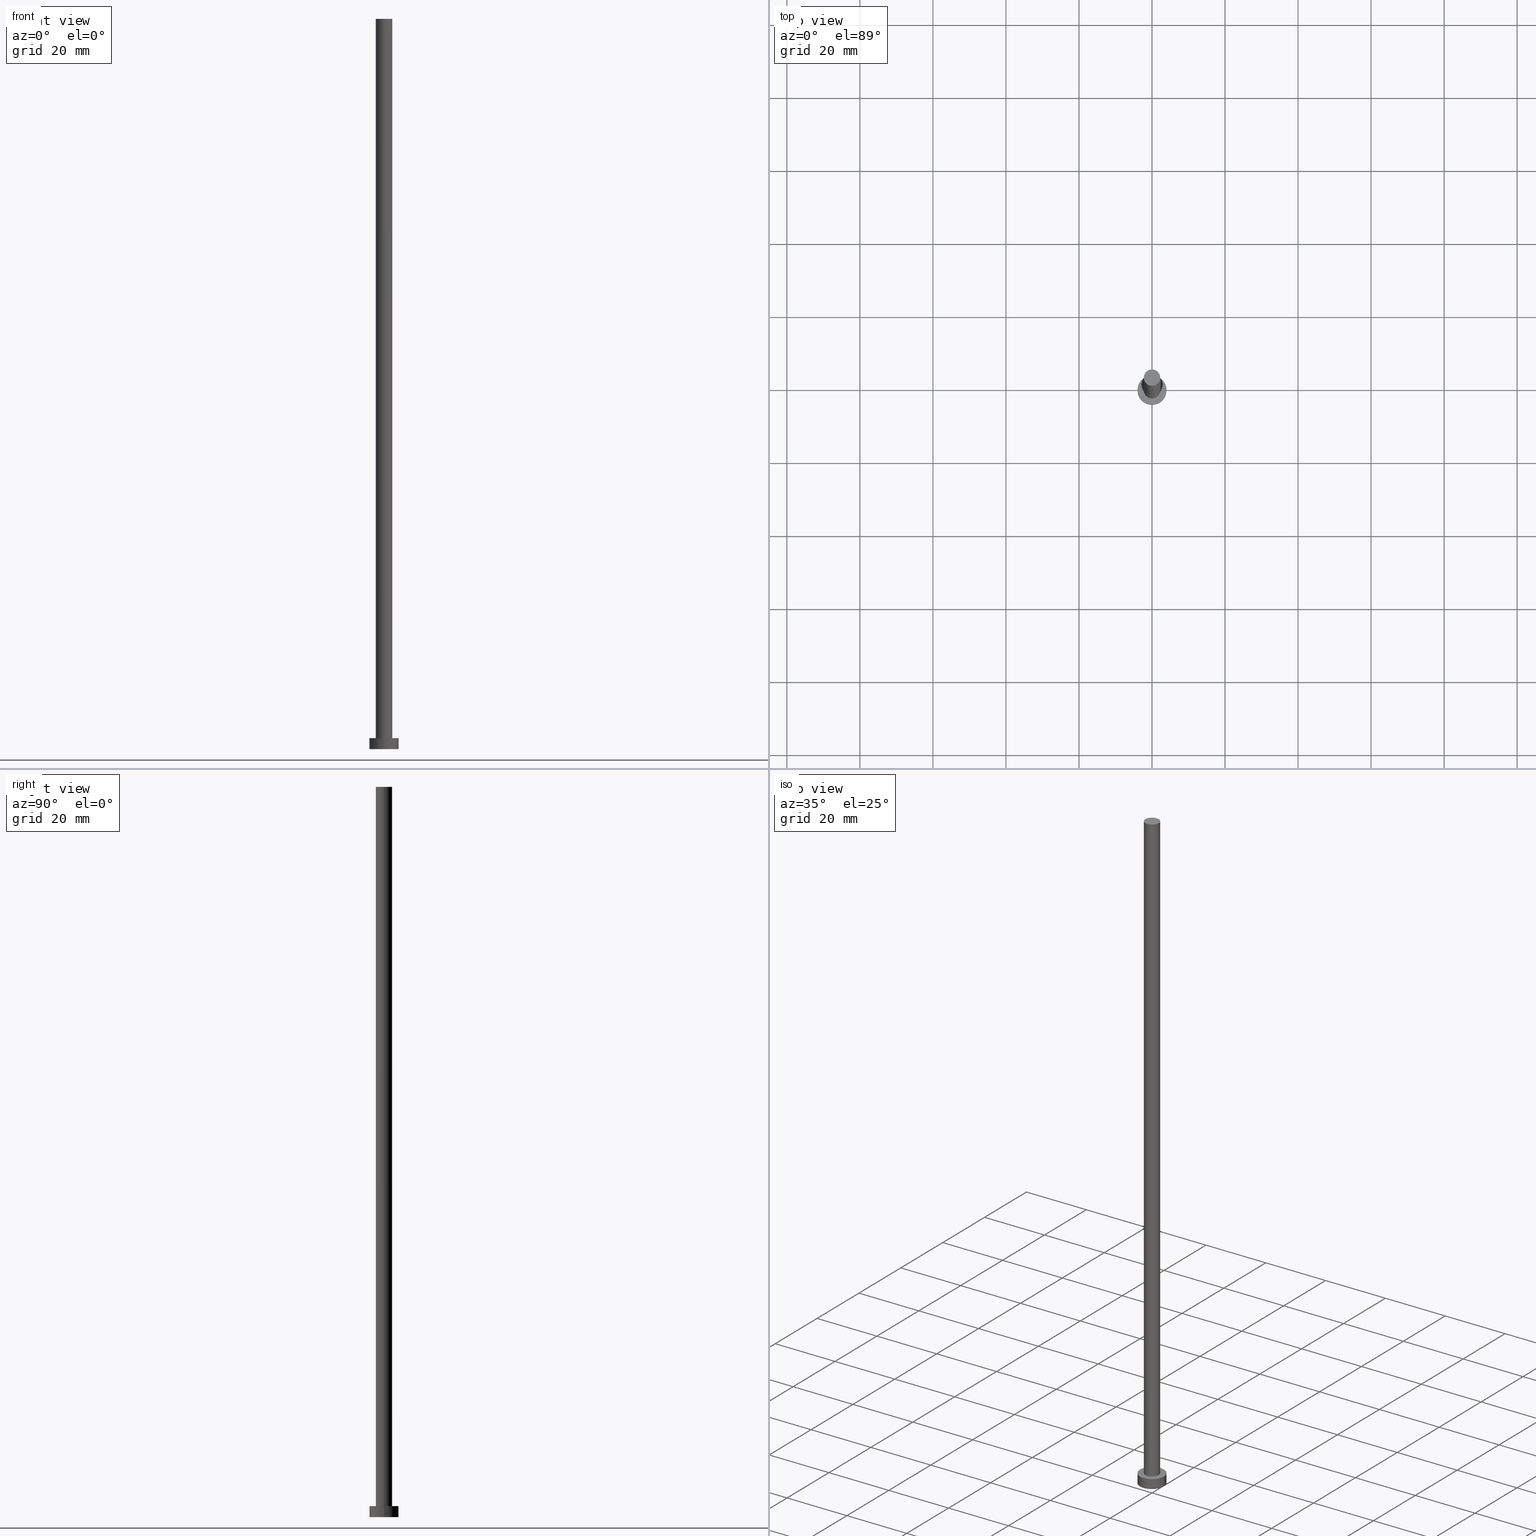
[diagram: canonical four-view strip — front | top / right | iso, engineering-drawing reading convention]
A machine part, canonical four-view strip (front | top / right | iso — engineering-drawing reading convention). The complete STEP part file that produces these views, byte-faithful:
ISO-10303-21;
HEADER;
FILE_DESCRIPTION (( 'STEP AP203' ),
    '1' );
FILE_NAME ('211e.STEP',
    '2023-02-13T13:28:23',
    ( '' ),
    ( '' ),
    'SwSTEP 2.0',
    'SolidWorks 2019',
    '' );
FILE_SCHEMA (( 'CONFIG_CONTROL_DESIGN' ));
ENDSEC;

DATA;
#1 = CC_DESIGN_APPROVAL ( #114, ( #201 ) ) ;
#2 = APPROVAL ( #85, 'NEUR�EN�' ) ;
#3 = APPROVAL_DATE_TIME ( #45, #114 ) ;
#4 = CIRCLE ( 'NONE', #162, 2.250000000000000000 ) ;
#5 = DATE_AND_TIME ( #209, #40 ) ;
#6 = CALENDAR_DATE ( 2023, 13, 2 ) ;
#7 = DATE_TIME_ROLE ( 'classification_date' ) ;
#8 = COORDINATED_UNIVERSAL_TIME_OFFSET ( 1, 0, .AHEAD. ) ;
#9 = VERTEX_POINT ( 'NONE', #127 ) ;
#10 = EDGE_LOOP ( 'NONE', ( #70, #88 ) ) ;
#11 = DATE_AND_TIME ( #188, #221 ) ;
#12 = LINE ( 'NONE', #119, #239 ) ;
#13 = CC_DESIGN_PERSON_AND_ORGANIZATION_ASSIGNMENT ( #185, #242, ( #81 ) ) ;
#14 = EDGE_LOOP ( 'NONE', ( #168, #206, #232, #84 ) ) ;
#15 = DIRECTION ( 'NONE',  ( 1.000000000000000000, 0.000000000000000000, 0.000000000000000000 ) ) ;
#16 = CARTESIAN_POINT ( 'NONE',  ( -4.000000000000000000, 0.000000000000000000, 3.000000000000000000 ) ) ;
#17 = CYLINDRICAL_SURFACE ( 'NONE', #132, 4.000000000000000000 ) ;
#18 = FACE_OUTER_BOUND ( 'NONE', #14, .T. ) ;
#19 = FACE_OUTER_BOUND ( 'NONE', #187, .T. ) ;
#20 = PRODUCT_RELATED_PRODUCT_CATEGORY ( 'detail', '', ( #81 ) ) ;
#21 = CARTESIAN_POINT ( 'NONE',  ( -2.250000000000000000, 0.000000000000000000, 200.0000000000000000 ) ) ;
#22 = DIRECTION ( 'NONE',  ( 0.000000000000000000, 0.000000000000000000, 1.000000000000000000 ) ) ;
#23 = CC_DESIGN_APPROVAL ( #2, ( #222 ) ) ;
#24 = DIRECTION ( 'NONE',  ( -1.000000000000000000, 0.000000000000000000, 0.000000000000000000 ) ) ;
#25 = APPLICATION_PROTOCOL_DEFINITION ( 'international standard', 'config_control_design', 1994, #124 ) ;
#26 = PERSON_AND_ORGANIZATION ( #240, #202 ) ;
#27 = DIRECTION ( 'NONE',  ( -0.000000000000000000, -0.000000000000000000, -1.000000000000000000 ) ) ;
#28 = PERSON_AND_ORGANIZATION ( #240, #202 ) ;
#29 = ORIENTED_EDGE ( 'NONE', *, *, #61, .F. ) ;
#30 = DATE_AND_TIME ( #145, #215 ) ;
#31 = AXIS2_PLACEMENT_3D ( 'NONE', #58, #78, #77 ) ;
#32 = ORIENTED_EDGE ( 'NONE', *, *, #92, .T. ) ;
#33 = PERSON_AND_ORGANIZATION ( #240, #202 ) ;
#34 = LINE ( 'NONE', #16, #80 ) ;
#35 = DIRECTION ( 'NONE',  ( -0.000000000000000000, -0.000000000000000000, -1.000000000000000000 ) ) ;
#36 = CARTESIAN_POINT ( 'NONE',  ( 0.000000000000000000, 0.000000000000000000, 3.000000000000000000 ) ) ;
#37 = DIRECTION ( 'NONE',  ( 1.000000000000000000, 0.000000000000000000, 0.000000000000000000 ) ) ;
#38 = CARTESIAN_POINT ( 'NONE',  ( -4.000000000000000000, 0.000000000000000000, 3.000000000000000000 ) ) ;
#39 = CYLINDRICAL_SURFACE ( 'NONE', #144, 2.250000000000000000 ) ;
#40 = LOCAL_TIME ( 14, 28, 23.00000000000000000, #182 ) ;
#41 = CIRCLE ( 'NONE', #236, 4.000000000000000000 ) ;
#42 = EDGE_CURVE ( 'NONE', #165, #156, #241, .T. ) ;
#43 = LOCAL_TIME ( 14, 28, 23.00000000000000000, #151 ) ;
#44 = CC_DESIGN_DATE_AND_TIME_ASSIGNMENT ( #183, #7, ( #201 ) ) ;
#45 = DATE_AND_TIME ( #6, #243 ) ;
#46 = EDGE_CURVE ( 'NONE', #251, #156, #212, .T. ) ;
#47 = CALENDAR_DATE ( 2023, 13, 2 ) ;
#48 = CARTESIAN_POINT ( 'NONE',  ( 0.000000000000000000, 0.000000000000000000, 0.000000000000000000 ) ) ;
#49 = APPROVAL_PERSON_ORGANIZATION ( #83, #114, #164 ) ;
#50 = CYLINDRICAL_SURFACE ( 'NONE', #223, 2.250000000000000000 ) ;
#51 = COORDINATED_UNIVERSAL_TIME_OFFSET ( 1, 0, .AHEAD. ) ;
#52 = ORIENTED_EDGE ( 'NONE', *, *, #46, .T. ) ;
#53 = DIRECTION ( 'NONE',  ( 1.000000000000000000, 0.000000000000000000, -0.000000000000000000 ) ) ;
#54 = DIRECTION ( 'NONE',  ( 1.000000000000000000, 0.000000000000000000, 0.000000000000000000 ) ) ;
#55 = LINE ( 'NONE', #228, #219 ) ;
#56 = CYLINDRICAL_SURFACE ( 'NONE', #137, 4.000000000000000000 ) ;
#57 = DIRECTION ( 'NONE',  ( -0.000000000000000000, -0.000000000000000000, -1.000000000000000000 ) ) ;
#58 = CARTESIAN_POINT ( 'NONE',  ( 0.000000000000000000, 0.000000000000000000, 3.000000000000000000 ) ) ;
#59 = DIRECTION ( 'NONE',  ( 0.000000000000000000, 0.000000000000000000, 1.000000000000000000 ) ) ;
#60 = PRODUCT_DEFINITION_FORMATION_WITH_SPECIFIED_SOURCE ( 'LIBOVOLN�', '', #81, .NOT_KNOWN. ) ;
#61 = EDGE_CURVE ( 'NONE', #147, #135, #67, .T. ) ;
#62 = CC_DESIGN_PERSON_AND_ORGANIZATION_ASSIGNMENT ( #33, #190, ( #60 ) ) ;
#63 = EDGE_CURVE ( 'NONE', #191, #251, #34, .T. ) ;
#64 = CC_DESIGN_APPROVAL ( #79, ( #60 ) ) ;
#65 = APPROVAL_DATE_TIME ( #11, #79 ) ;
#66 =( NAMED_UNIT ( * ) SI_UNIT ( $, .STERADIAN. ) SOLID_ANGLE_UNIT ( ) );
#67 = CIRCLE ( 'NONE', #226, 2.250000000000000000 ) ;
#68 = DIRECTION ( 'NONE',  ( -0.000000000000000000, -0.000000000000000000, -1.000000000000000000 ) ) ;
#69 = APPROVAL_ROLE ( '' ) ;
#70 = ORIENTED_EDGE ( 'NONE', *, *, #123, .F. ) ;
#71 = CARTESIAN_POINT ( 'NONE',  ( 4.000000000000000000, 4.898587196589412829E-16, 3.000000000000000000 ) ) ;
#72 = PERSON_AND_ORGANIZATION_ROLE ( 'classification_officer' ) ;
#73 = DIRECTION ( 'NONE',  ( 0.000000000000000000, 0.000000000000000000, 1.000000000000000000 ) ) ;
#74 = CARTESIAN_POINT ( 'NONE',  ( 0.000000000000000000, 0.000000000000000000, 3.000000000000000000 ) ) ;
#75 = ORIENTED_EDGE ( 'NONE', *, *, #63, .F. ) ;
#76 = PLANE ( 'NONE',  #198 ) ;
#77 = DIRECTION ( 'NONE',  ( 1.000000000000000000, 0.000000000000000000, 0.000000000000000000 ) ) ;
#78 = DIRECTION ( 'NONE',  ( 0.000000000000000000, 0.000000000000000000, 1.000000000000000000 ) ) ;
#79 = APPROVAL ( #109, 'NEUR�EN�' ) ;
#80 = VECTOR ( 'NONE', #27, 1000.000000000000000 ) ;
#81 = PRODUCT ( '211e', '211e', '', ( #104 ) ) ;
#82 = EDGE_CURVE ( 'NONE', #147, #9, #55, .T. ) ;
#83 = PERSON_AND_ORGANIZATION ( #240, #202 ) ;
#84 = ORIENTED_EDGE ( 'NONE', *, *, #82, .F. ) ;
#85 = APPROVAL_STATUS ( 'not_yet_approved' ) ;
#86 = ORIENTED_EDGE ( 'NONE', *, *, #63, .T. ) ;
#87 = CC_DESIGN_SECURITY_CLASSIFICATION ( #201, ( #60 ) ) ;
#88 = ORIENTED_EDGE ( 'NONE', *, *, #158, .F. ) ;
#89 = SECURITY_CLASSIFICATION_LEVEL ( 'unclassified' ) ;
#90 = ORIENTED_EDGE ( 'NONE', *, *, #46, .F. ) ;
#91 = DIRECTION ( 'NONE',  ( 1.000000000000000000, 0.000000000000000000, 0.000000000000000000 ) ) ;
#92 = EDGE_CURVE ( 'NONE', #191, #165, #167, .T. ) ;
#93 = EDGE_LOOP ( 'NONE', ( #130, #29, #108, #248 ) ) ;
#94 = PLANE ( 'NONE',  #125 ) ;
#95 = DIRECTION ( 'NONE',  ( 1.000000000000000000, 0.000000000000000000, 0.000000000000000000 ) ) ;
#96 = FACE_OUTER_BOUND ( 'NONE', #210, .T. ) ;
#97 = CIRCLE ( 'NONE', #197, 2.250000000000000000 ) ;
#98 = CIRCLE ( 'NONE', #100, 4.000000000000000000 ) ;
#99 = APPROVAL_PERSON_ORGANIZATION ( #28, #2, #69 ) ;
#100 = AXIS2_PLACEMENT_3D ( 'NONE', #159, #218, #91 ) ;
#101 = ADVANCED_FACE ( 'NONE', ( #18 ), #50, .T. ) ;
#102 = APPROVAL_PERSON_ORGANIZATION ( #112, #79, #211 ) ;
#103 = SHAPE_DEFINITION_REPRESENTATION ( #110, #224 ) ;
#104 = MECHANICAL_CONTEXT ( 'NONE', #152, 'mechanical' ) ;
#105 = DATE_TIME_ROLE ( 'creation_date' ) ;
#106 = VERTEX_POINT ( 'NONE', #250 ) ;
#107 = APPROVAL_DATE_TIME ( #5, #2 ) ;
#108 = ORIENTED_EDGE ( 'NONE', *, *, #82, .T. ) ;
#109 = APPROVAL_STATUS ( 'not_yet_approved' ) ;
#110 = PRODUCT_DEFINITION_SHAPE ( 'NONE', 'NONE',  #222 ) ;
#111 = ORIENTED_EDGE ( 'NONE', *, *, #42, .F. ) ;
#112 = PERSON_AND_ORGANIZATION ( #240, #202 ) ;
#113 = EDGE_CURVE ( 'NONE', #135, #106, #12, .T. ) ;
#114 = APPROVAL ( #163, 'NEUR�EN�' ) ;
#115 = EDGE_LOOP ( 'NONE', ( #111, #184, #86, #52 ) ) ;
#116 = FACE_OUTER_BOUND ( 'NONE', #229, .T. ) ;
#117 = DIRECTION ( 'NONE',  ( 0.000000000000000000, 0.000000000000000000, 1.000000000000000000 ) ) ;
#118 = FACE_BOUND ( 'NONE', #10, .T. ) ;
#119 = CARTESIAN_POINT ( 'NONE',  ( 2.250000000000000000, 2.755455298081544285E-16, 200.0000000000000000 ) ) ;
#120 = CLOSED_SHELL ( 'NONE', ( #101, #203, #133, #238, #247, #231, #199 ) ) ;
#121 = FACE_OUTER_BOUND ( 'NONE', #244, .T. ) ;
#122 = CARTESIAN_POINT ( 'NONE',  ( 0.000000000000000000, 0.000000000000000000, 0.000000000000000000 ) ) ;
#123 = EDGE_CURVE ( 'NONE', #9, #106, #200, .T. ) ;
#124 = APPLICATION_CONTEXT ( 'configuration controlled 3d designs of mechanical parts and assemblies' ) ;
#125 = AXIS2_PLACEMENT_3D ( 'NONE', #175, #22, #252 ) ;
#126 = CARTESIAN_POINT ( 'NONE',  ( -4.000000000000000000, 0.000000000000000000, 0.000000000000000000 ) ) ;
#127 = CARTESIAN_POINT ( 'NONE',  ( -2.250000000000000000, 0.000000000000000000, 3.000000000000000000 ) ) ;
#128 = DIRECTION ( 'NONE',  ( 0.000000000000000000, 0.000000000000000000, 1.000000000000000000 ) ) ;
#129 = DIRECTION ( 'NONE',  ( 0.000000000000000000, 0.000000000000000000, 1.000000000000000000 ) ) ;
#130 = ORIENTED_EDGE ( 'NONE', *, *, #113, .F. ) ;
#131 = CARTESIAN_POINT ( 'NONE',  ( 0.000000000000000000, 0.000000000000000000, 0.000000000000000000 ) ) ;
#132 = AXIS2_PLACEMENT_3D ( 'NONE', #74, #35, #138 ) ;
#133 = ADVANCED_FACE ( 'NONE', ( #217 ), #17, .T. ) ;
#134 = ORIENTED_EDGE ( 'NONE', *, *, #181, .F. ) ;
#135 = VERTEX_POINT ( 'NONE', #235 ) ;
#136 = DIRECTION ( 'NONE',  ( -0.000000000000000000, -0.000000000000000000, -1.000000000000000000 ) ) ;
#137 = AXIS2_PLACEMENT_3D ( 'NONE', #214, #140, #192 ) ;
#138 = DIRECTION ( 'NONE',  ( -1.000000000000000000, 0.000000000000000000, 0.000000000000000000 ) ) ;
#139 = CC_DESIGN_PERSON_AND_ORGANIZATION_ASSIGNMENT ( #26, #205, ( #222 ) ) ;
#140 = DIRECTION ( 'NONE',  ( -0.000000000000000000, -0.000000000000000000, -1.000000000000000000 ) ) ;
#141 = MANIFOLD_SOLID_BREP ( 'P�idat vysunut�m3', #120 ) ;
#142 = UNCERTAINTY_MEASURE_WITH_UNIT (LENGTH_MEASURE( 1.000000000000000082E-05 ), #166, 'distance_accuracy_value', 'NONE');
#143 = AXIS2_PLACEMENT_3D ( 'NONE', #36, #117, #193 ) ;
#144 = AXIS2_PLACEMENT_3D ( 'NONE', #196, #136, #249 ) ;
#145 = CALENDAR_DATE ( 2023, 13, 2 ) ;
#146 = CARTESIAN_POINT ( 'NONE',  ( 0.000000000000000000, 0.000000000000000000, 200.0000000000000000 ) ) ;
#147 = VERTEX_POINT ( 'NONE', #21 ) ;
#148 = EDGE_CURVE ( 'NONE', #165, #191, #98, .T. ) ;
#149 = CC_DESIGN_PERSON_AND_ORGANIZATION_ASSIGNMENT ( #225, #169, ( #60 ) ) ;
#150 = CARTESIAN_POINT ( 'NONE',  ( 0.000000000000000000, 0.000000000000000000, 0.000000000000000000 ) ) ;
#151 = COORDINATED_UNIVERSAL_TIME_OFFSET ( 1, 0, .AHEAD. ) ;
#152 = APPLICATION_CONTEXT ( 'configuration controlled 3d designs of mechanical parts and assemblies' ) ;
#153 = ORIENTED_EDGE ( 'NONE', *, *, #176, .T. ) ;
#154 = CARTESIAN_POINT ( 'NONE',  ( 4.000000000000000000, 4.898587196589412829E-16, 3.000000000000000000 ) ) ;
#155 = CC_DESIGN_DATE_AND_TIME_ASSIGNMENT ( #30, #105, ( #222 ) ) ;
#156 = VERTEX_POINT ( 'NONE', #160 ) ;
#157 = CARTESIAN_POINT ( 'NONE',  ( 0.000000000000000000, 0.000000000000000000, 200.0000000000000000 ) ) ;
#158 = EDGE_CURVE ( 'NONE', #106, #9, #4, .T. ) ;
#159 = CARTESIAN_POINT ( 'NONE',  ( 0.000000000000000000, 0.000000000000000000, 3.000000000000000000 ) ) ;
#160 = CARTESIAN_POINT ( 'NONE',  ( 4.000000000000000000, 4.898587196589412829E-16, 0.000000000000000000 ) ) ;
#161 = CARTESIAN_POINT ( 'NONE',  ( 0.000000000000000000, 0.000000000000000000, 200.0000000000000000 ) ) ;
#162 = AXIS2_PLACEMENT_3D ( 'NONE', #178, #59, #37 ) ;
#163 = APPROVAL_STATUS ( 'not_yet_approved' ) ;
#164 = APPROVAL_ROLE ( '' ) ;
#165 = VERTEX_POINT ( 'NONE', #154 ) ;
#166 =( LENGTH_UNIT ( ) NAMED_UNIT ( * ) SI_UNIT ( .MILLI., .METRE. ) );
#167 = CIRCLE ( 'NONE', #143, 4.000000000000000000 ) ;
#168 = ORIENTED_EDGE ( 'NONE', *, *, #176, .F. ) ;
#169 = PERSON_AND_ORGANIZATION_ROLE ( 'creator' ) ;
#170 = ORIENTED_EDGE ( 'NONE', *, *, #148, .F. ) ;
#171 = PERSON_AND_ORGANIZATION ( #240, #202 ) ;
#172 = ORIENTED_EDGE ( 'NONE', *, *, #61, .T. ) ;
#173 = DIRECTION ( 'NONE',  ( 0.000000000000000000, 0.000000000000000000, 1.000000000000000000 ) ) ;
#174 = ORIENTED_EDGE ( 'NONE', *, *, #181, .T. ) ;
#175 = CARTESIAN_POINT ( 'NONE',  ( 0.000000000000000000, 0.000000000000000000, 3.000000000000000000 ) ) ;
#176 = EDGE_CURVE ( 'NONE', #135, #147, #97, .T. ) ;
#177 = DIRECTION ( 'NONE',  ( 0.000000000000000000, 0.000000000000000000, 1.000000000000000000 ) ) ;
#178 = CARTESIAN_POINT ( 'NONE',  ( 0.000000000000000000, 0.000000000000000000, 3.000000000000000000 ) ) ;
#179 = AXIS2_PLACEMENT_3D ( 'NONE', #157, #237, #233 ) ;
#180 = AXIS2_PLACEMENT_3D ( 'NONE', #48, #128, #15 ) ;
#181 = EDGE_CURVE ( 'NONE', #156, #251, #41, .T. ) ;
#182 = COORDINATED_UNIVERSAL_TIME_OFFSET ( 1, 0, .AHEAD. ) ;
#183 = DATE_AND_TIME ( #47, #43 ) ;
#184 = ORIENTED_EDGE ( 'NONE', *, *, #92, .F. ) ;
#185 = PERSON_AND_ORGANIZATION ( #240, #202 ) ;
#186 = CC_DESIGN_PERSON_AND_ORGANIZATION_ASSIGNMENT ( #171, #72, ( #201 ) ) ;
#187 = EDGE_LOOP ( 'NONE', ( #32, #208 ) ) ;
#188 = CALENDAR_DATE ( 2023, 13, 2 ) ;
#189 = VECTOR ( 'NONE', #216, 1000.000000000000000 ) ;
#190 = PERSON_AND_ORGANIZATION_ROLE ( 'design_supplier' ) ;
#191 = VERTEX_POINT ( 'NONE', #38 ) ;
#192 = DIRECTION ( 'NONE',  ( -1.000000000000000000, 0.000000000000000000, 0.000000000000000000 ) ) ;
#193 = DIRECTION ( 'NONE',  ( 1.000000000000000000, 0.000000000000000000, 0.000000000000000000 ) ) ;
#194 = DIRECTION ( 'NONE',  ( 1.000000000000000000, 0.000000000000000000, 0.000000000000000000 ) ) ;
#195 = PLANE ( 'NONE',  #179 ) ;
#196 = CARTESIAN_POINT ( 'NONE',  ( 0.000000000000000000, 0.000000000000000000, 200.0000000000000000 ) ) ;
#197 = AXIS2_PLACEMENT_3D ( 'NONE', #254, #177, #194 ) ;
#198 = AXIS2_PLACEMENT_3D ( 'NONE', #131, #227, #53 ) ;
#199 = ADVANCED_FACE ( 'NONE', ( #121 ), #195, .T. ) ;
#200 = CIRCLE ( 'NONE', #31, 2.250000000000000000 ) ;
#201 = SECURITY_CLASSIFICATION ( '', '', #89 ) ;
#202 = ORGANIZATION ( 'NEUR�EN�', 'NEUR�EN�', '' ) ;
#203 = ADVANCED_FACE ( 'NONE', ( #116 ), #56, .T. ) ;
#204 = DESIGN_CONTEXT ( 'detailed design', #124, 'design' ) ;
#205 = PERSON_AND_ORGANIZATION_ROLE ( 'creator' ) ;
#206 = ORIENTED_EDGE ( 'NONE', *, *, #113, .T. ) ;
#207 = APPLICATION_PROTOCOL_DEFINITION ( 'international standard', 'config_control_design', 1994, #152 ) ;
#208 = ORIENTED_EDGE ( 'NONE', *, *, #148, .T. ) ;
#209 = CALENDAR_DATE ( 2023, 13, 2 ) ;
#210 = EDGE_LOOP ( 'NONE', ( #90, #134 ) ) ;
#211 = APPROVAL_ROLE ( '' ) ;
#212 = CIRCLE ( 'NONE', #255, 4.000000000000000000 ) ;
#213 = DIRECTION ( 'NONE',  ( 1.000000000000000000, 0.000000000000000000, 0.000000000000000000 ) ) ;
#214 = CARTESIAN_POINT ( 'NONE',  ( 0.000000000000000000, 0.000000000000000000, 3.000000000000000000 ) ) ;
#215 = LOCAL_TIME ( 14, 28, 23.00000000000000000, #51 ) ;
#216 = DIRECTION ( 'NONE',  ( -0.000000000000000000, -0.000000000000000000, -1.000000000000000000 ) ) ;
#217 = FACE_OUTER_BOUND ( 'NONE', #115, .T. ) ;
#218 = DIRECTION ( 'NONE',  ( 0.000000000000000000, 0.000000000000000000, 1.000000000000000000 ) ) ;
#219 = VECTOR ( 'NONE', #68, 1000.000000000000000 ) ;
#220 = FACE_OUTER_BOUND ( 'NONE', #93, .T. ) ;
#221 = LOCAL_TIME ( 14, 28, 23.00000000000000000, #246 ) ;
#222 = PRODUCT_DEFINITION ( 'NEZN�M�', '', #60, #204 ) ;
#223 = AXIS2_PLACEMENT_3D ( 'NONE', #161, #57, #24 ) ;
#224 = ADVANCED_BREP_SHAPE_REPRESENTATION ( '211e', ( #141, #180 ), #230 ) ;
#225 = PERSON_AND_ORGANIZATION ( #240, #202 ) ;
#226 = AXIS2_PLACEMENT_3D ( 'NONE', #146, #129, #213 ) ;
#227 = DIRECTION ( 'NONE',  ( 0.000000000000000000, 0.000000000000000000, 1.000000000000000000 ) ) ;
#228 = CARTESIAN_POINT ( 'NONE',  ( -2.250000000000000000, 0.000000000000000000, 200.0000000000000000 ) ) ;
#229 = EDGE_LOOP ( 'NONE', ( #170, #234, #174, #75 ) ) ;
#230 =( GEOMETRIC_REPRESENTATION_CONTEXT ( 3 ) GLOBAL_UNCERTAINTY_ASSIGNED_CONTEXT ( ( #142 ) ) GLOBAL_UNIT_ASSIGNED_CONTEXT ( ( #166, #245, #66 ) ) REPRESENTATION_CONTEXT ( 'NONE', 'WORKASPACE' ) );
#231 = ADVANCED_FACE ( 'NONE', ( #220 ), #39, .T. ) ;
#232 = ORIENTED_EDGE ( 'NONE', *, *, #158, .T. ) ;
#233 = DIRECTION ( 'NONE',  ( 1.000000000000000000, 0.000000000000000000, -0.000000000000000000 ) ) ;
#234 = ORIENTED_EDGE ( 'NONE', *, *, #42, .T. ) ;
#235 = CARTESIAN_POINT ( 'NONE',  ( 2.250000000000000000, 2.755455298081544285E-16, 200.0000000000000000 ) ) ;
#236 = AXIS2_PLACEMENT_3D ( 'NONE', #122, #173, #95 ) ;
#237 = DIRECTION ( 'NONE',  ( 0.000000000000000000, 0.000000000000000000, 1.000000000000000000 ) ) ;
#238 = ADVANCED_FACE ( 'NONE', ( #118, #19 ), #94, .T. ) ;
#239 = VECTOR ( 'NONE', #253, 1000.000000000000000 ) ;
#240 = PERSON ( 'NEUR�EN�', 'NEUR�EN�', 'NEUR�EN�', ('NEUR�EN�'), ('NEUR�EN�'), ('NEUR�EN�') ) ;
#241 = LINE ( 'NONE', #71, #189 ) ;
#242 = PERSON_AND_ORGANIZATION_ROLE ( 'design_owner' ) ;
#243 = LOCAL_TIME ( 14, 28, 23.00000000000000000, #8 ) ;
#244 = EDGE_LOOP ( 'NONE', ( #172, #153 ) ) ;
#245 =( NAMED_UNIT ( * ) PLANE_ANGLE_UNIT ( ) SI_UNIT ( $, .RADIAN. ) );
#246 = COORDINATED_UNIVERSAL_TIME_OFFSET ( 1, 0, .AHEAD. ) ;
#247 = ADVANCED_FACE ( 'NONE', ( #96 ), #76, .F. ) ;
#248 = ORIENTED_EDGE ( 'NONE', *, *, #123, .T. ) ;
#249 = DIRECTION ( 'NONE',  ( -1.000000000000000000, 0.000000000000000000, 0.000000000000000000 ) ) ;
#250 = CARTESIAN_POINT ( 'NONE',  ( 2.250000000000000000, 2.755455298081544285E-16, 3.000000000000000000 ) ) ;
#251 = VERTEX_POINT ( 'NONE', #126 ) ;
#252 = DIRECTION ( 'NONE',  ( 1.000000000000000000, 0.000000000000000000, -0.000000000000000000 ) ) ;
#253 = DIRECTION ( 'NONE',  ( -0.000000000000000000, -0.000000000000000000, -1.000000000000000000 ) ) ;
#254 = CARTESIAN_POINT ( 'NONE',  ( 0.000000000000000000, 0.000000000000000000, 200.0000000000000000 ) ) ;
#255 = AXIS2_PLACEMENT_3D ( 'NONE', #150, #73, #54 ) ;
ENDSEC;
END-ISO-10303-21;
